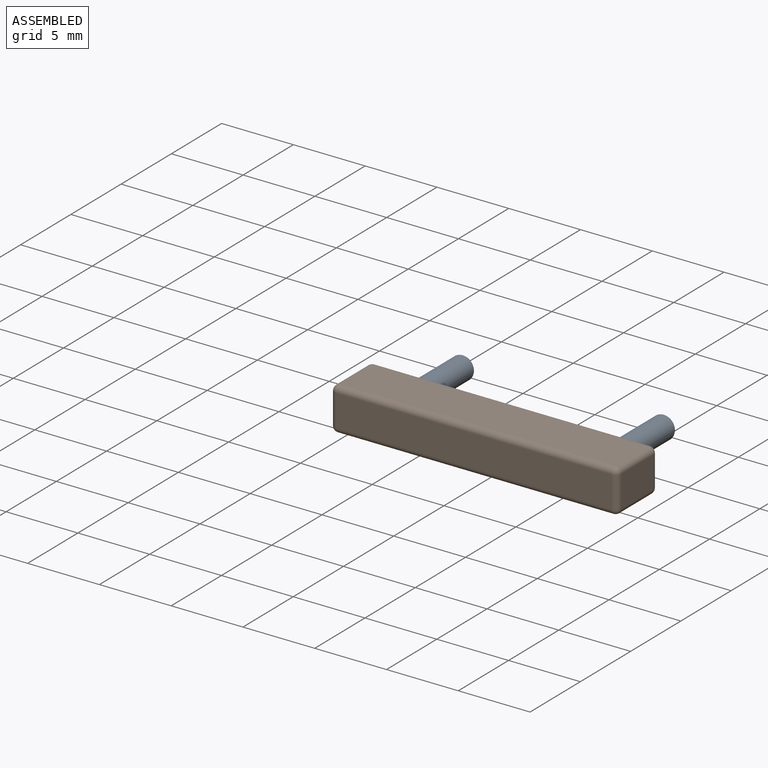
[diagram: assembled view]
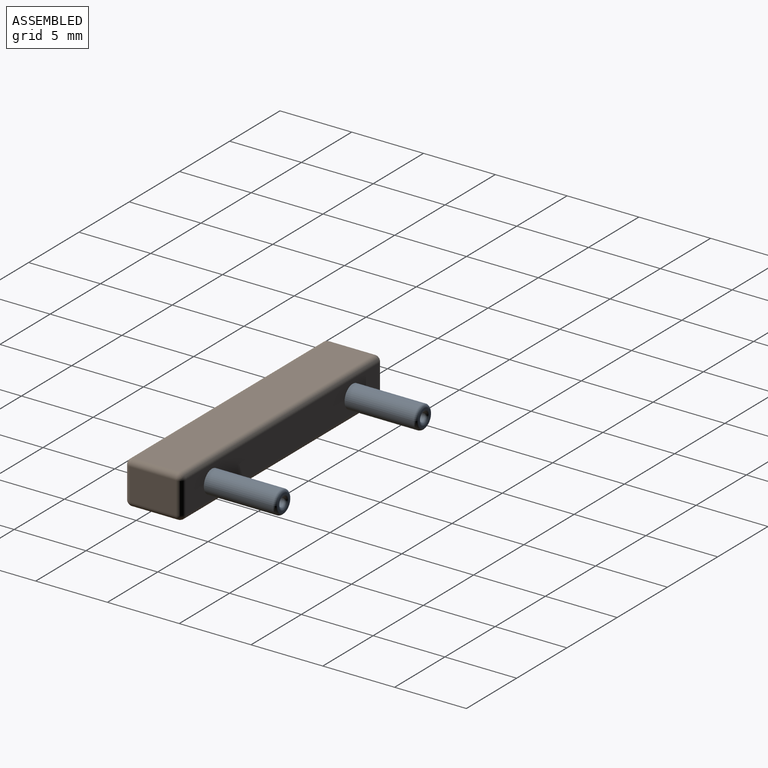
[diagram: assembled view, second angle]
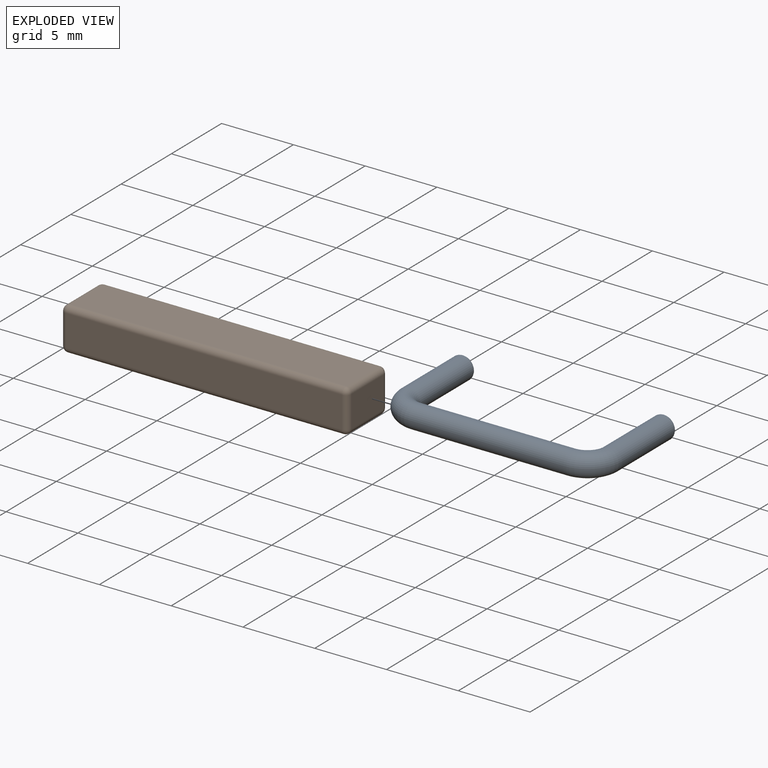
[diagram: exploded view]
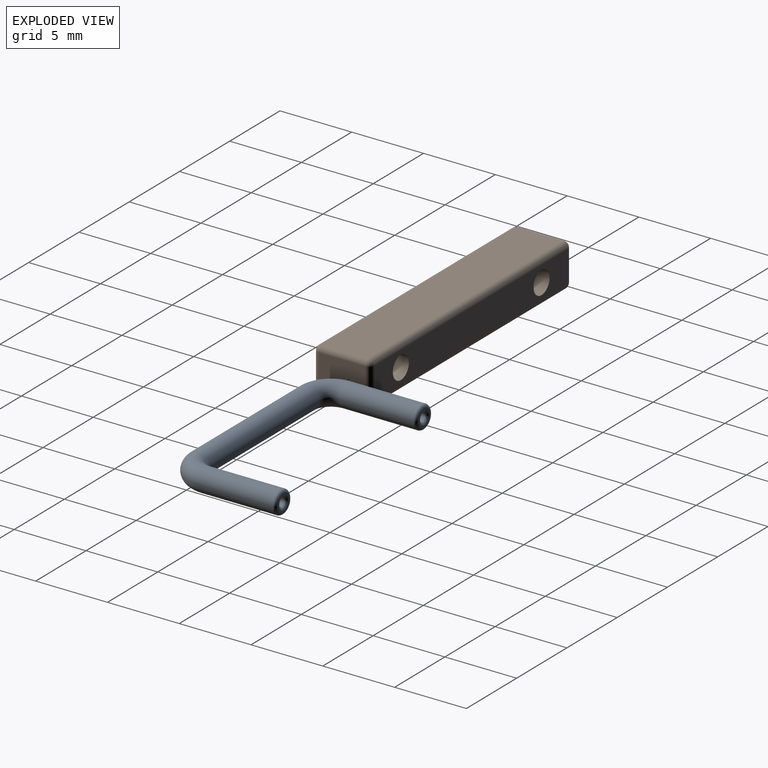
[diagram: exploded view, second angle]
ASSEMBLY  parts=2 mates=2
PART A: 15 faces, bbox 16x8x1.7 mm
  f0: cylinder r=0.8mm len=5.2mm, axis (0,1,0), area 26.1mm2, adj f4,f13
  f1: cylinder r=0.8mm len=5.2mm, axis (0,-1,0), area 26.1mm2, adj f2,f14
  f2: torus R=1.6mm, axis (0,0,-1), area 12.6mm2, adj f1,f3
  f3: cylinder r=0.8mm len=10.8mm, axis (-1,0,0), area 54.3mm2, adj f2,f4
  f4: torus R=1.6mm, axis (0,0,-1), area 12.6mm2, adj f0,f3
  f5: plane 1.2x1.2mm, normal (0,1,0), area 0.3mm2, adj f11,f14
  f6: plane 1.2x1.2mm, normal (0,1,0), area 0.3mm2, adj f12,f13
  f7: cylinder r=0.3mm len=4.8mm, axis (0,1,0), area 9mm2, adj f8,f12
  f8: plane 0.6x0.6mm, normal (0,1,0), area 0.3mm2, adj f7
  f9: cylinder r=0.3mm len=4.8mm, axis (0,1,0), area 9mm2, adj f10,f11
  f10: plane 0.6x0.6mm, normal (0,1,0), area 0.3mm2, adj f9
  f11: torus R=0.5mm, axis (0,1,0), area 0.7mm2, adj f5,f9
  f12: torus R=0.5mm, axis (0,1,0), area 0.7mm2, adj f6,f7
  f13: torus R=0.6mm, axis (0,1,0), area 1.4mm2, adj f0,f6
  f14: torus R=0.6mm, axis (0,1,0), area 1.4mm2, adj f1,f5
PART B: 31 faces, bbox 20x4x3 mm
  f0: plane 19.2x2.2mm, normal (0,-1,0), area 42.2mm2, adj f19,f24,f27,f30
  f1: plane 3.2x2.2mm, normal (1,0,0), area 7mm2, adj f16,f25,f26,f30
  f2: plane 19.2x2.2mm, normal (0,1,0), area 38.2mm2, adj f6,f7,f11,f15,f16,f17
  f3: plane 3.2x2.2mm, normal (-1,0,0), area 7mm2, adj f11,f14,f18,f19
  f4: plane 19.2x3.2mm, normal (0,0,1), area 61.4mm2, adj f14,f15,f24,f25
  f5: plane 19.2x3.2mm, normal (0,0,-1), area 61.4mm2, adj f17,f18,f26,f27
  f6: cylinder r=0.8mm len=1.6mm, axis (0,1,0), area 2mm2, adj f2,f10
  f7: cylinder r=0.8mm len=1.6mm, axis (0,-1,0), area 2mm2, adj f2,f8
  f8: torus R=1.6mm, axis (0,0,-1), area 12.6mm2, adj f7,f9
  f9: cylinder r=0.8mm len=10.8mm, axis (-1,0,0), area 54.3mm2, adj f8,f10
  f10: torus R=1.6mm, axis (0,0,-1), area 12.6mm2, adj f6,f9
  f11: cylinder r=0.4mm len=2.2mm, axis (0,0,1), area 1.4mm2, adj f2,f3,f12,f13
  f12: sphere r=0.4mm, area 0.3mm2, adj f11,f14,f15
  f13: sphere r=0.4mm, area 0.3mm2, adj f11,f17,f18
  f14: cylinder r=0.4mm len=3.2mm, axis (0,1,0), area 2mm2, adj f3,f4,f12,f20
  f15: cylinder r=0.4mm len=19.2mm, axis (1,0,0), area 12.1mm2, adj f2,f4,f12,f21
  f16: cylinder r=0.4mm len=2.2mm, axis (0,0,-1), area 1.4mm2, adj f1,f2,f21,f22
  f17: cylinder r=0.4mm len=19.2mm, axis (-1,0,0), area 12.1mm2, adj f2,f5,f13,f22
  f18: cylinder r=0.4mm len=3.2mm, axis (0,-1,0), area 2mm2, adj f3,f5,f13,f23
  f19: cylinder r=0.4mm len=2.2mm, axis (0,0,-1), area 1.4mm2, adj f0,f3,f20,f23
  f20: sphere r=0.4mm, area 0.3mm2, adj f14,f19,f24
  f21: sphere r=0.4mm, area 0.3mm2, adj f15,f16,f25
  f22: sphere r=0.4mm, area 0.3mm2, adj f16,f17,f26
  f23: sphere r=0.4mm, area 0.3mm2, adj f18,f19,f27
  f24: cylinder r=0.4mm len=19.2mm, axis (-1,0,0), area 12.1mm2, adj f0,f4,f20,f28
  f25: cylinder r=0.4mm len=3.2mm, axis (0,-1,0), area 2mm2, adj f1,f4,f21,f28
  f26: cylinder r=0.4mm len=3.2mm, axis (0,1,0), area 2mm2, adj f1,f5,f22,f29
  f27: cylinder r=0.4mm len=19.2mm, axis (1,0,0), area 12.1mm2, adj f0,f5,f23,f29
  f28: sphere r=0.4mm, area 0.3mm2, adj f24,f25,f30
  f29: sphere r=0.4mm, area 0.3mm2, adj f26,f27,f30
  f30: cylinder r=0.4mm len=2.2mm, axis (0,0,1), area 1.4mm2, adj f0,f1,f28,f29
PLACE A t=(-0.57,-4.22,-0.91)mm
PLACE B t=(-0.57,-4.22,-0.91)mm
MATE cylindrical A.f3 <-> B.f9  axis (-1,0,0) through (-0.57,-4.22,0.59)mm
MATE cylindrical A.f1 <-> B.f7  axis (0,-1,0) through (6.43,-0.02,0.59)mm
